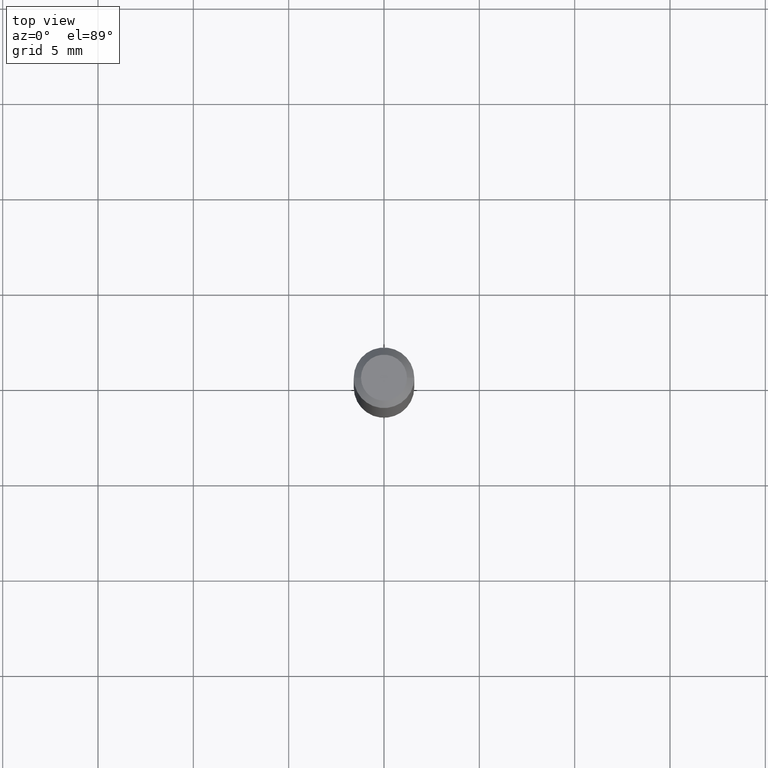
[diagram: clean part render]
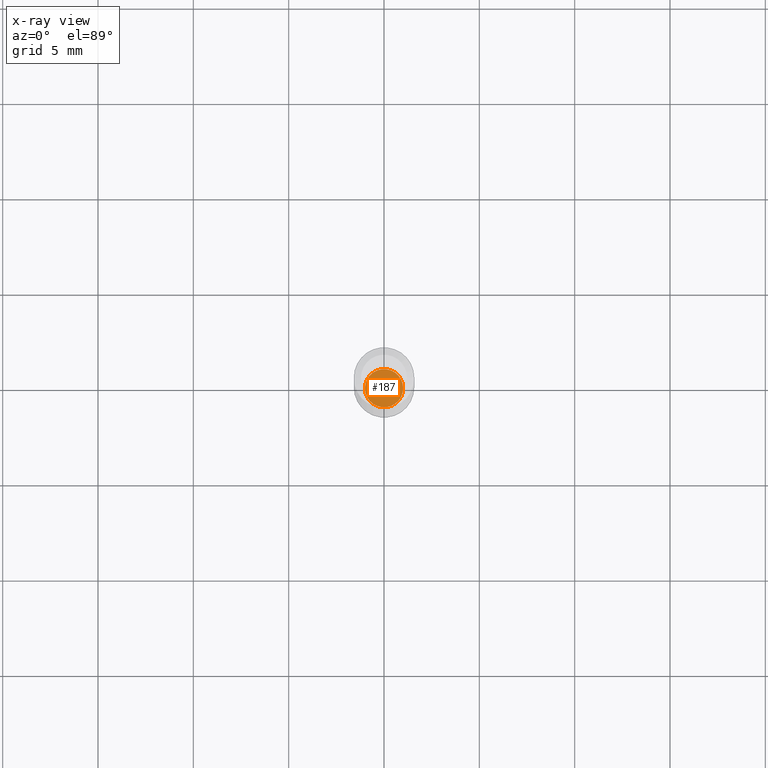
[diagram: x-ray — body ghosted, one internal face saturated and labeled with its STEP entity id]
A machine part, top view, then the same camera in x-ray: the body is ghosted and one INTERNAL B-rep face — a face not visible from any outside direction — is saturated and labeled: STEP entity #187.
In plain terms, the highlighted planar face has unit normal (-0, 0, 1).
Its self-contained STEP definition (entity closure, byte-faithful):
#2 = CARTESIAN_POINT ( 'NONE',  ( -0.03949999999999994488, -4.115952879143013491E-15, -1.260000000000000231 ) ) ;
#25 = ORIENTED_EDGE ( 'NONE', *, *, #390, .F. ) ;
#35 = DIRECTION ( 'NONE',  ( -2.445468806185136597E-29, 3.491481338843145583E-15, 1.000000000000000000 ) ) ;
#51 = DIRECTION ( 'NONE',  ( 1.000000000000000000, -6.982962677686256455E-15, 0.000000000000000000 ) ) ;
#82 = DIRECTION ( 'NONE',  ( 1.000000000000000000, -6.982962677686265922E-15, 4.876176775795935793E-29 ) ) ;
#124 = CIRCLE ( 'NONE', #378, 0.03949999999999994488 ) ;
#133 = VERTEX_POINT ( 'NONE', #431 ) ;
#140 = EDGE_LOOP ( 'NONE', ( #25, #181 ) ) ;
#177 = AXIS2_PLACEMENT_3D ( 'NONE', #445, #486, #82 ) ;
#181 = ORIENTED_EDGE ( 'NONE', *, *, #248, .F. ) ;
#187 = ADVANCED_FACE ( 'NONE', ( #359 ), #282, .F. ) ;
#237 = CARTESIAN_POINT ( 'NONE',  ( 3.081290695793272291E-29, -4.399266486942364120E-15, -1.260000000000000231 ) ) ;
#248 = EDGE_CURVE ( 'NONE', #319, #133, #418, .T. ) ;
#282 = PLANE ( 'NONE',  #177 ) ;
#319 = VERTEX_POINT ( 'NONE', #2 ) ;
#330 = CARTESIAN_POINT ( 'NONE',  ( 3.081290695793272291E-29, -4.399266486942364120E-15, -1.260000000000000231 ) ) ;
#359 = FACE_OUTER_BOUND ( 'NONE', #140, .T. ) ;
#376 = DIRECTION ( 'NONE',  ( -2.445468806185136597E-29, 3.491481338843145583E-15, 1.000000000000000000 ) ) ;
#378 = AXIS2_PLACEMENT_3D ( 'NONE', #330, #376, #51 ) ;
#390 = EDGE_CURVE ( 'NONE', #133, #319, #124, .T. ) ;
#405 = DIRECTION ( 'NONE',  ( 1.000000000000000000, -6.982962677686256455E-15, 0.000000000000000000 ) ) ;
#418 = CIRCLE ( 'NONE', #517, 0.03949999999999994488 ) ;
#431 = CARTESIAN_POINT ( 'NONE',  ( 0.03949999999999994488, -4.675093512710971151E-15, -1.260000000000000231 ) ) ;
#445 = CARTESIAN_POINT ( 'NONE',  ( 3.081290695793272291E-29, -4.399266486942364120E-15, -1.260000000000000231 ) ) ;
#486 = DIRECTION ( 'NONE',  ( -2.438088387897960049E-29, 3.491481338843145188E-15, 1.000000000000000000 ) ) ;
#517 = AXIS2_PLACEMENT_3D ( 'NONE', #237, #35, #405 ) ;